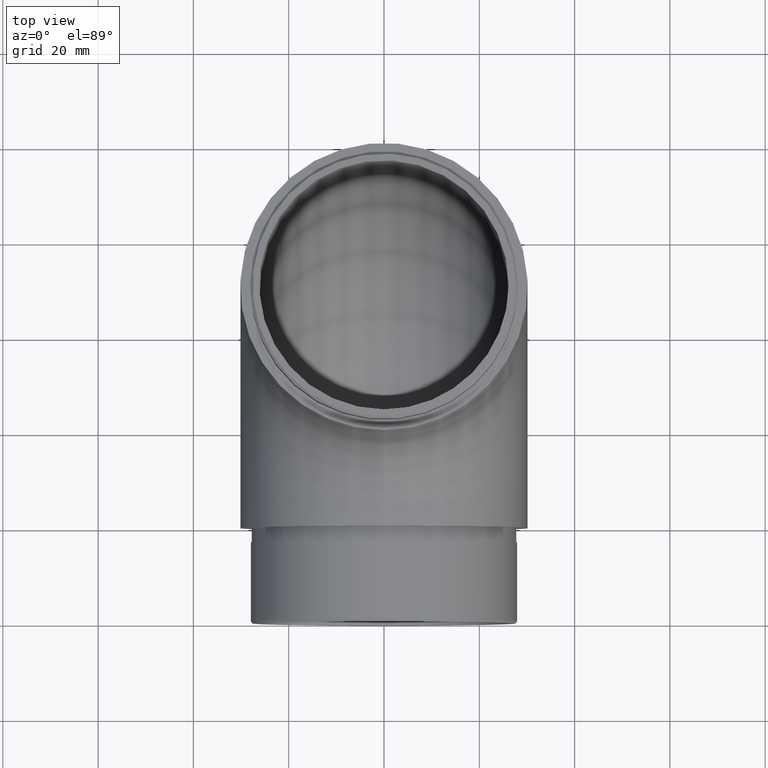
[diagram: clean part render]
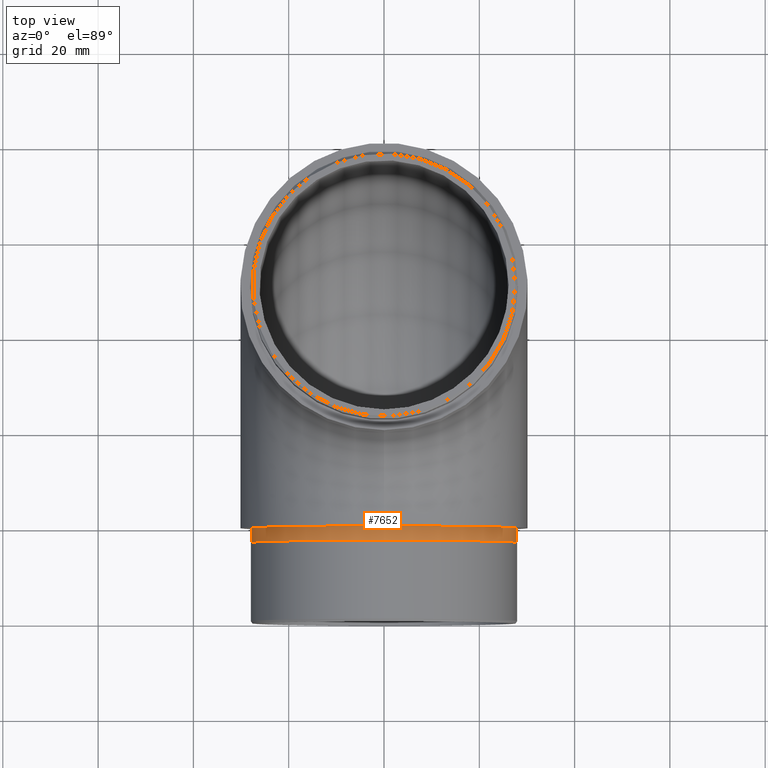
[diagram: same view with one face highlighted and labeled with its STEP entity id]
A machine part, top view. The second image highlights one B-rep face of the part: STEP entity #7652.
In plain terms, the highlighted cylindrical surface (bore or boss wall) has radius 27.9 mm, axis along (-0, 1, -0).
Its self-contained STEP definition (entity closure, byte-faithful):
#141 = EDGE_LOOP ( 'NONE', ( #7070 ) ) ;
#533 = EDGE_LOOP ( 'NONE', ( #7915 ) ) ;
#2115 = DIRECTION ( 'NONE',  ( 0.0000000000000000000, 0.0000000000000000000, 1.000000000000000000 ) ) ;
#2228 = CYLINDRICAL_SURFACE ( 'NONE', #11187, 27.90000000000000200 ) ;
#2559 = EDGE_CURVE ( 'NONE', #6762, #6762, #8002, .T. ) ;
#2678 = CIRCLE ( 'NONE', #7279, 27.90000000000000200 ) ;
#3224 = AXIS2_PLACEMENT_3D ( 'NONE', #6150, #11775, #10735 ) ;
#4190 = DIRECTION ( 'NONE',  ( -0.0000000000000000000, -1.000000000000000000, -0.0000000000000000000 ) ) ;
#4293 = EDGE_CURVE ( 'NONE', #5133, #5133, #2678, .T. ) ;
#5090 = DIRECTION ( 'NONE',  ( -0.0000000000000000000, 1.000000000000000000, -0.0000000000000000000 ) ) ;
#5107 = DIRECTION ( 'NONE',  ( 0.0000000000000000000, 0.0000000000000000000, 1.000000000000000000 ) ) ;
#5133 = VERTEX_POINT ( 'NONE', #7473 ) ;
#5493 = CARTESIAN_POINT ( 'NONE',  ( 0.0000000000000000000, -3.000000000000000000, 2.250000000000005300 ) ) ;
#5912 = CARTESIAN_POINT ( 'NONE',  ( 0.0000000000000000000, 0.0000000000000000000, 30.15000000000000200 ) ) ;
#6150 = CARTESIAN_POINT ( 'NONE',  ( 0.0000000000000000000, -3.000000000000000000, 30.15000000000000200 ) ) ;
#6762 = VERTEX_POINT ( 'NONE', #5493 ) ;
#7070 = ORIENTED_EDGE ( 'NONE', *, *, #4293, .T. ) ;
#7279 = AXIS2_PLACEMENT_3D ( 'NONE', #5912, #4190, #5107 ) ;
#7473 = CARTESIAN_POINT ( 'NONE',  ( 0.0000000000000000000, 0.0000000000000000000, 58.05000000000000400 ) ) ;
#7551 = FACE_OUTER_BOUND ( 'NONE', #141, .T. ) ;
#7652 = ADVANCED_FACE ( 'NONE', ( #9742, #7551 ), #2228, .T. ) ;
#7809 = CARTESIAN_POINT ( 'NONE',  ( 0.0000000000000000000, -3.000000000000000000, 30.15000000000000200 ) ) ;
#7915 = ORIENTED_EDGE ( 'NONE', *, *, #2559, .F. ) ;
#8002 = CIRCLE ( 'NONE', #3224, 27.89999999999999900 ) ;
#9742 = FACE_OUTER_BOUND ( 'NONE', #533, .T. ) ;
#10735 = DIRECTION ( 'NONE',  ( 0.0000000000000000000, 0.0000000000000000000, -1.000000000000000000 ) ) ;
#11187 = AXIS2_PLACEMENT_3D ( 'NONE', #7809, #5090, #2115 ) ;
#11775 = DIRECTION ( 'NONE',  ( 0.0000000000000000000, -1.000000000000000000, 0.0000000000000000000 ) ) ;